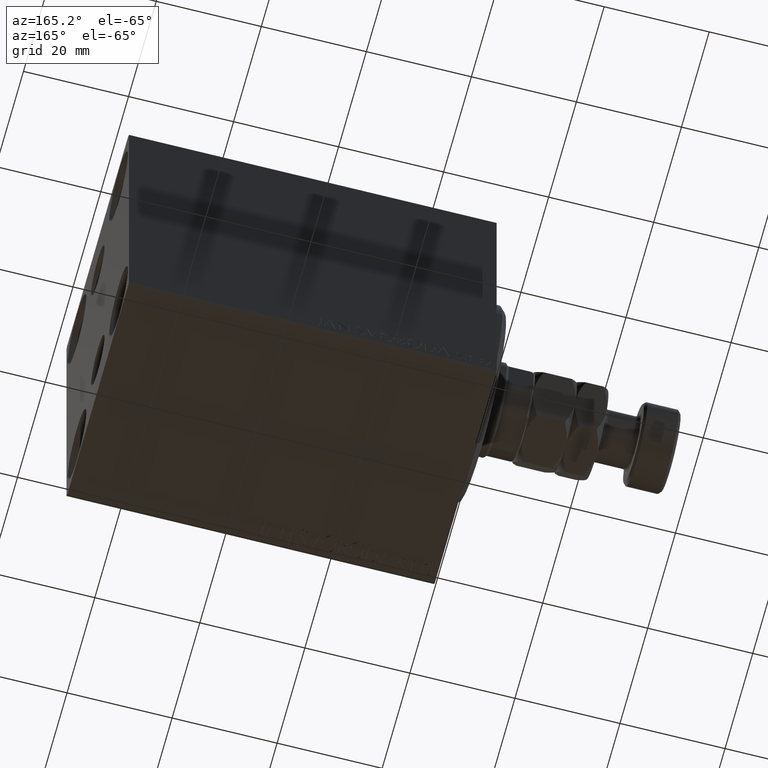
[diagram: clean part render]
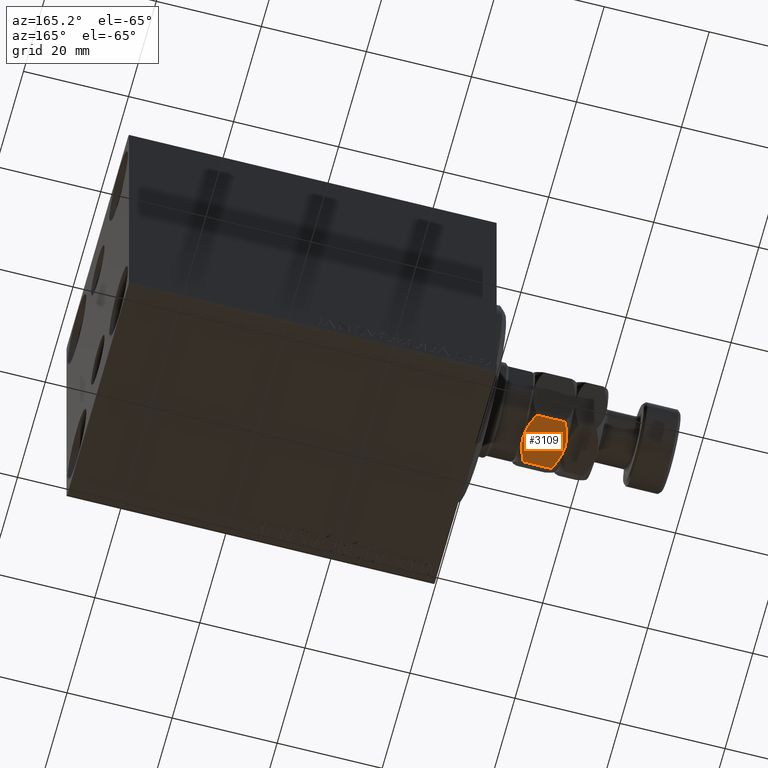
[diagram: same view with one face highlighted and labeled with its STEP entity id]
A machine part, auxiliary view. The second image highlights one B-rep face of the part: STEP entity #3109.
In plain terms, the highlighted planar face has unit normal (0, 0, 1).
Its self-contained STEP definition (entity closure, byte-faithful):
#297 = CARTESIAN_POINT ( 'NONE',  ( -8.500000000000000000, -0.8516617604573334388, 7.967848961132538044 ) ) ;
#708 = EDGE_CURVE ( 'NONE', #37558, #33746, #19653, .T. ) ;
#1292 = EDGE_CURVE ( 'NONE', #33746, #2299, #3731, .T. ) ;
#2299 = VERTEX_POINT ( 'NONE', #44692 ) ;
#3047 = CARTESIAN_POINT ( 'NONE',  ( -8.500000000000001776, -4.140161075469500851, 7.068703530097532273 ) ) ;
#3109 = ADVANCED_FACE ( 'NONE', ( #15237 ), #25128, .F. ) ;
#3347 = CARTESIAN_POINT ( 'NONE',  ( -8.500000000000001776, -4.139854994771650532, 0.9311434295535483407 ) ) ;
#3389 = CARTESIAN_POINT ( 'NONE',  ( -8.500000000000001776, 4.907477288111821601, 6.685045423776368345 ) ) ;
#3731 = B_SPLINE_CURVE_WITH_KNOTS ( 'NONE', 3,
 ( #31073, #42118, #297, #17517, #34528, #28547, #3047, #7186 ),
 .UNSPECIFIED., .F., .F.,
 ( 4, 2, 2, 4 ),
 ( 0.02090421300422859799, 0.02218651579087455722, 0.02346881857752051298, 0.02603342415081242797 ),
 .UNSPECIFIED. ) ;
#4210 = CARTESIAN_POINT ( 'NONE',  ( -8.500000000000001776, -1.502314598737158637E-15, 0.000000000000000000 ) ) ;
#4238 = LINE ( 'NONE', #42613, #11194 ) ;
#4317 = CARTESIAN_POINT ( 'NONE',  ( -8.500000000000003553, 0.8497849549400458002, 7.967944758129794636 ) ) ;
#4462 = ORIENTED_EDGE ( 'NONE', *, *, #12142, .F. ) ;
#5603 = CARTESIAN_POINT ( 'NONE',  ( -8.500000000000001776, 4.907477288111821601, 8.000000000000000000 ) ) ;
#6828 = CARTESIAN_POINT ( 'NONE',  ( -8.500000000000003553, 3.351438397892507748, 7.397066932847728538 ) ) ;
#7186 = CARTESIAN_POINT ( 'NONE',  ( -8.500000000000000000, -4.907477288111824265, 6.685045423776367457 ) ) ;
#8321 = CARTESIAN_POINT ( 'NONE',  ( -8.500000000000003553, 0.4256370648452535432, -8.499975625696900944E-16 ) ) ;
#8825 = DIRECTION ( 'NONE',  ( -0.000000000000000000, -0.000000000000000000, -1.000000000000000000 ) ) ;
#9770 = CARTESIAN_POINT ( 'NONE',  ( -8.499999999999998224, -2.119956228269633591, 0.2515287342491187017 ) ) ;
#10151 = EDGE_CURVE ( 'NONE', #18723, #11405, #45479, .T. ) ;
#10236 = CARTESIAN_POINT ( 'NONE',  ( -8.500000000000000000, -3.352131279506822104, 0.6031284304619860537 ) ) ;
#11194 = VECTOR ( 'NONE', #21678, 1000.000000000000000 ) ;
#11405 = VERTEX_POINT ( 'NONE', #11996 ) ;
#11762 = CARTESIAN_POINT ( 'NONE',  ( -8.500000000000001776, 4.907477288111821601, 1.314954576223634097 ) ) ;
#11996 = CARTESIAN_POINT ( 'NONE',  ( -8.500000000000001776, -1.502314598737158637E-15, 0.000000000000000000 ) ) ;
#12027 = CARTESIAN_POINT ( 'NONE',  ( -8.499999999999996447, -1.502314598737157848E-15, 8.000000000000000000 ) ) ;
#12142 = EDGE_CURVE ( 'NONE', #2299, #18723, #4238, .T. ) ;
#13921 = CARTESIAN_POINT ( 'NONE',  ( -8.500000000000000000, -4.907477288111824265, 1.314954576223634763 ) ) ;
#14411 = CARTESIAN_POINT ( 'NONE',  ( -8.500000000000003553, 0.4250562772389694932, 8.000000000000005329 ) ) ;
#14587 = VECTOR ( 'NONE', #8825, 1000.000000000000000 ) ;
#15237 = FACE_OUTER_BOUND ( 'NONE', #37236, .T. ) ;
#15423 = CARTESIAN_POINT ( 'NONE',  ( -8.500000000000001776, 2.123774520232882601, 0.2525122409469394702 ) ) ;
#15626 = EDGE_CURVE ( 'NONE', #11405, #35837, #20952, .T. ) ;
#16790 = CARTESIAN_POINT ( 'NONE',  ( -8.500000000000001776, 4.907477288111821601, 1.314954576223634097 ) ) ;
#17355 = CARTESIAN_POINT ( 'NONE',  ( -8.500000000000001776, -1.502314598737158637E-15, 0.000000000000000000 ) ) ;
#17517 = CARTESIAN_POINT ( 'NONE',  ( -8.500000000000000000, -1.704290491844014266, 7.841080917550289797 ) ) ;
#18311 = CARTESIAN_POINT ( 'NONE',  ( -8.499999999999996447, -1.502314598737157848E-15, 8.000000000000000000 ) ) ;
#18723 = VERTEX_POINT ( 'NONE', #13921 ) ;
#19653 = B_SPLINE_CURVE_WITH_KNOTS ( 'NONE', 3,
 ( #3389, #20834, #6828, #35334, #42236, #4317, #14411, #18311 ),
 .UNSPECIFIED., .F., .F.,
 ( 4, 2, 2, 4 ),
 ( 0.01578235603560546041, 0.01834328451991702746, 0.01962374876207281446, 0.02090421300422859799 ),
 .UNSPECIFIED. ) ;
#20834 = CARTESIAN_POINT ( 'NONE',  ( -8.500000000000003553, 4.139497883677782930, 7.069035125993385904 ) ) ;
#20952 = B_SPLINE_CURVE_WITH_KNOTS ( 'NONE', 3,
 ( #4210, #8321, #32232, #25552, #15423, #29659, #33110, #11762 ),
 .UNSPECIFIED., .F., .F.,
 ( 4, 2, 2, 4 ),
 ( 0.02112078995288570529, 0.02240296911910874544, 0.02368514828533178213, 0.02624950661777785896 ),
 .UNSPECIFIED. ) ;
#21678 = DIRECTION ( 'NONE',  ( -0.000000000000000000, -0.000000000000000000, -1.000000000000000000 ) ) ;
#22154 = CARTESIAN_POINT ( 'NONE',  ( -8.500000000000001776, 4.907477288111821601, 6.685045423776368345 ) ) ;
#22823 = ORIENTED_EDGE ( 'NONE', *, *, #708, .F. ) ;
#23551 = CARTESIAN_POINT ( 'NONE',  ( -8.500000000000000000, -4.907477288111824265, 1.314954576223634763 ) ) ;
#24092 = ORIENTED_EDGE ( 'NONE', *, *, #10151, .F. ) ;
#24462 = CARTESIAN_POINT ( 'NONE',  ( -8.500000000000001776, -0.4252082920830618229, -8.797848878814666846E-16 ) ) ;
#25128 = PLANE ( 'NONE',  #31108 ) ;
#25552 = CARTESIAN_POINT ( 'NONE',  ( -8.500000000000003553, 1.706008309425099290, 0.1592238233048453577 ) ) ;
#25795 = CARTESIAN_POINT ( 'NONE',  ( -8.500000000000001776, 4.907477288111821601, 8.000000000000000000 ) ) ;
#28547 = CARTESIAN_POINT ( 'NONE',  ( -8.500000000000001776, -3.353279637626481513, 7.396279653520236863 ) ) ;
#29659 = CARTESIAN_POINT ( 'NONE',  ( -8.500000000000001776, 3.352020480670828029, 0.6033098685796222105 ) ) ;
#30913 = CARTESIAN_POINT ( 'NONE',  ( -8.500000000000000000, -1.697406582464703551, 0.1576838761756158558 ) ) ;
#30967 = ORIENTED_EDGE ( 'NONE', *, *, #1292, .F. ) ;
#31073 = CARTESIAN_POINT ( 'NONE',  ( -8.499999999999996447, -1.502314598737157848E-15, 8.000000000000000000 ) ) ;
#31108 = AXIS2_PLACEMENT_3D ( 'NONE', #25795, #39838, #35262 ) ;
#32232 = CARTESIAN_POINT ( 'NONE',  ( -8.500000000000003553, 0.8519727303832903553, 0.03214805330870153938 ) ) ;
#33110 = CARTESIAN_POINT ( 'NONE',  ( -8.500000000000001776, 4.139332188297095705, 0.9308820263162732589 ) ) ;
#33746 = VERTEX_POINT ( 'NONE', #12027 ) ;
#34450 = EDGE_CURVE ( 'NONE', #37558, #35837, #37090, .T. ) ;
#34456 = ORIENTED_EDGE ( 'NONE', *, *, #15626, .F. ) ;
#34528 = CARTESIAN_POINT ( 'NONE',  ( -8.500000000000000000, -2.124043526558857753, 7.747436326571863319 ) ) ;
#35262 = DIRECTION ( 'NONE',  ( -1.767428939690774316E-16, 1.000000000000000000, 0.000000000000000000 ) ) ;
#35334 = CARTESIAN_POINT ( 'NONE',  ( -8.500000000000001776, 2.120344129356181995, 7.748361753394902074 ) ) ;
#35837 = VERTEX_POINT ( 'NONE', #16790 ) ;
#37090 = LINE ( 'NONE', #5603, #14587 ) ;
#37236 = EDGE_LOOP ( 'NONE', ( #24092, #4462, #30967, #22823, #38826, #34456 ) ) ;
#37558 = VERTEX_POINT ( 'NONE', #22154 ) ;
#38826 = ORIENTED_EDGE ( 'NONE', *, *, #34450, .T. ) ;
#39838 = DIRECTION ( 'NONE',  ( 1.000000000000000000, 1.767428939690774316E-16, -0.000000000000000000 ) ) ;
#42118 = CARTESIAN_POINT ( 'NONE',  ( -8.500000000000000000, -0.4256665909445839779, 8.000000000000001776 ) ) ;
#42236 = CARTESIAN_POINT ( 'NONE',  ( -8.500000000000001776, 1.698611466173708173, 7.842106890605590408 ) ) ;
#42613 = CARTESIAN_POINT ( 'NONE',  ( -8.500000000000000000, -4.907477288111824265, 8.000000000000000000 ) ) ;
#44692 = CARTESIAN_POINT ( 'NONE',  ( -8.500000000000000000, -4.907477288111824265, 6.685045423776367457 ) ) ;
#44950 = CARTESIAN_POINT ( 'NONE',  ( -8.499999999999998224, -0.8497195448779558680, 0.03207620093399911332 ) ) ;
#45479 = B_SPLINE_CURVE_WITH_KNOTS ( 'NONE', 3,
 ( #23551, #3347, #10236, #9770, #30913, #44950, #24462, #17355 ),
 .UNSPECIFIED., .F., .F.,
 ( 4, 2, 2, 4 ),
 ( 0.01599723978826466178, 0.01855901487057518354, 0.01983990241173044441, 0.02112078995288570529 ),
 .UNSPECIFIED. ) ;